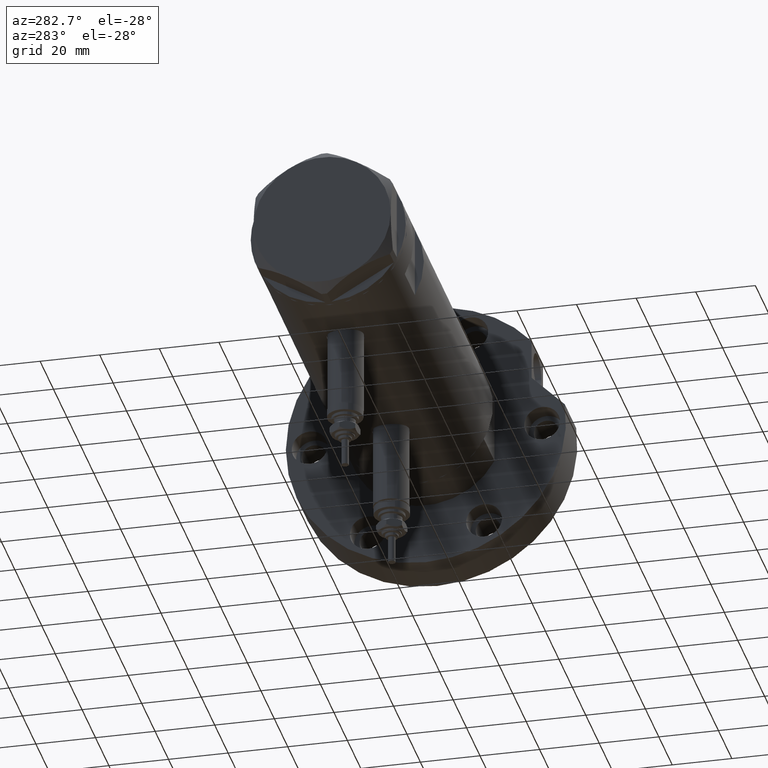
[diagram: clean part render]
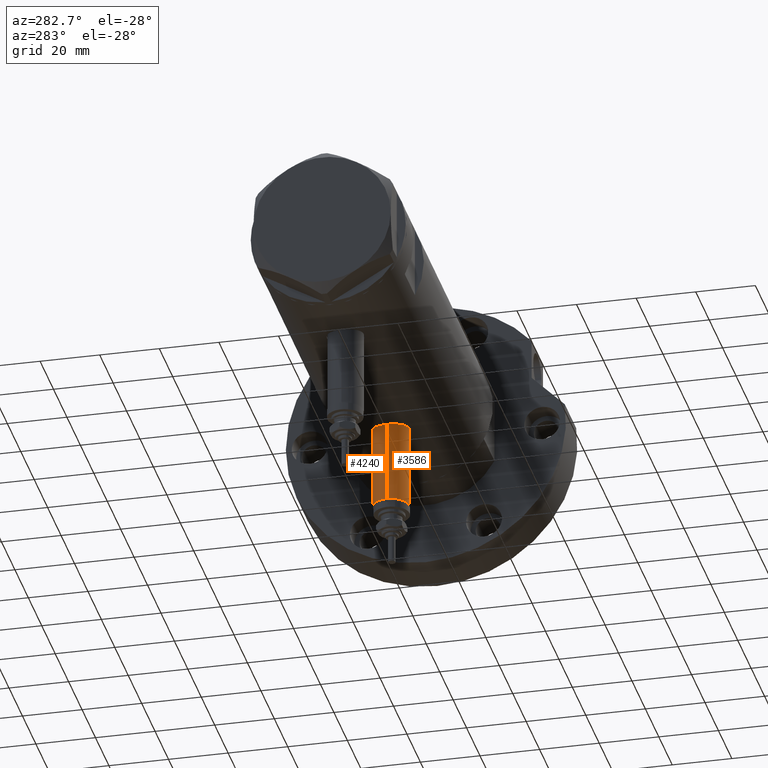
[diagram: same view with one multi-face feature highlighted, each face labeled with its STEP entity id]
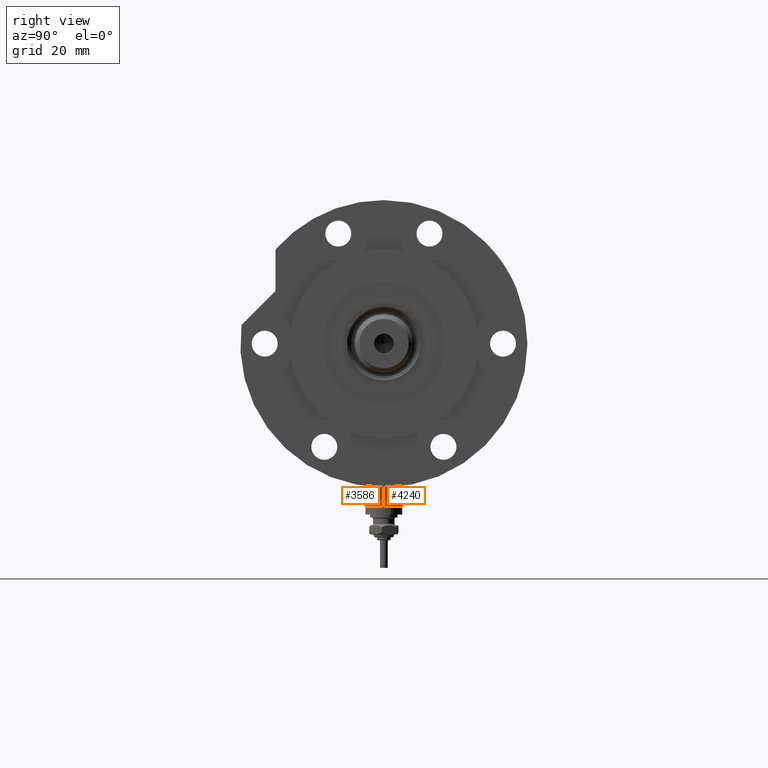
[diagram: same view with one multi-face feature highlighted, each face labeled with its STEP entity id]
A machine part, auxiliary view. The highlighted faces form ONE feature: a constant-radius fillet chain: 2 tangent blend faces with common blend radius 6 mm. The faces share edges in the B-rep.
A second angle (right view) of the same feature is appended — it is thin or edge-on in the first view.
Their STEP definitions:
[1] entity #4240 (Cylinder):
#46 = CIRCLE ( 'NONE', #5414, 6.000000000000001776 ) ;
#237 = VERTEX_POINT ( 'NONE', #7466 ) ;
#526 = CARTESIAN_POINT ( 'NONE',  ( -53.40000000000000568, 0.000000000000000000, -27.65000000000000924 ) ) ;
#578 = EDGE_LOOP ( 'NONE', ( #5950, #4549, #5734, #1494 ) ) ;
#1037 = EDGE_CURVE ( 'NONE', #1480, #1279, #1166, .T. ) ;
#1134 = DIRECTION ( 'NONE',  ( 0.000000000000000000, 0.000000000000000000, -1.000000000000000000 ) ) ;
#1136 = CARTESIAN_POINT ( 'NONE',  ( -53.40000000000000568, 7.347880794884123680E-16, -21.65000000000000213 ) ) ;
#1166 = CIRCLE ( 'NONE', #5909, 6.000000000000001776 ) ;
#1183 = VECTOR ( 'NONE', #2987, 1000.000000000000000 ) ;
#1254 = CARTESIAN_POINT ( 'NONE',  ( -24.80000000000000426, 7.347880794884123680E-16, -21.65000000000000213 ) ) ;
#1279 = VERTEX_POINT ( 'NONE', #1732 ) ;
#1480 = VERTEX_POINT ( 'NONE', #1136 ) ;
#1494 = ORIENTED_EDGE ( 'NONE', *, *, #2908, .F. ) ;
#1732 = CARTESIAN_POINT ( 'NONE',  ( -53.40000000000000568, 0.000000000000000000, -33.65000000000001279 ) ) ;
#1982 = CARTESIAN_POINT ( 'NONE',  ( -53.40000000000000568, 7.347880794884122694E-16, -21.65000000000000568 ) ) ;
#2202 = DIRECTION ( 'NONE',  ( 0.000000000000000000, 0.000000000000000000, 1.000000000000000000 ) ) ;
#2636 = VECTOR ( 'NONE', #3806, 1000.000000000000000 ) ;
#2654 = CARTESIAN_POINT ( 'NONE',  ( -24.80000000000000426, 0.000000000000000000, -27.65000000000000924 ) ) ;
#2805 = CARTESIAN_POINT ( 'NONE',  ( -53.40000000000000568, 0.000000000000000000, -33.65000000000001279 ) ) ;
#2908 = EDGE_CURVE ( 'NONE', #1279, #237, #3388, .T. ) ;
#2987 = DIRECTION ( 'NONE',  ( 1.000000000000000000, -0.000000000000000000, -0.000000000000000000 ) ) ;
#3388 = LINE ( 'NONE', #2805, #1183 ) ;
#3725 = DIRECTION ( 'NONE',  ( 0.000000000000000000, 0.000000000000000000, 1.000000000000000000 ) ) ;
#3806 = DIRECTION ( 'NONE',  ( 1.000000000000000000, -0.000000000000000000, -0.000000000000000000 ) ) ;
#3940 = EDGE_CURVE ( 'NONE', #6498, #237, #46, .T. ) ;
#4240 = ADVANCED_FACE ( 'NONE', ( #6736 ), #7323, .T. ) ;
#4549 = ORIENTED_EDGE ( 'NONE', *, *, #5246, .T. ) ;
#4672 = AXIS2_PLACEMENT_3D ( 'NONE', #526, #5511, #1134 ) ;
#5018 = LINE ( 'NONE', #1982, #2636 ) ;
#5246 = EDGE_CURVE ( 'NONE', #1480, #6498, #5018, .T. ) ;
#5414 = AXIS2_PLACEMENT_3D ( 'NONE', #2654, #7554, #3725 ) ;
#5511 = DIRECTION ( 'NONE',  ( 1.000000000000000000, -0.000000000000000000, -0.000000000000000000 ) ) ;
#5731 = CARTESIAN_POINT ( 'NONE',  ( -53.40000000000000568, 0.000000000000000000, -27.65000000000000924 ) ) ;
#5734 = ORIENTED_EDGE ( 'NONE', *, *, #3940, .T. ) ;
#5909 = AXIS2_PLACEMENT_3D ( 'NONE', #5731, #7051, #2202 ) ;
#5950 = ORIENTED_EDGE ( 'NONE', *, *, #1037, .F. ) ;
#6498 = VERTEX_POINT ( 'NONE', #1254 ) ;
#6736 = FACE_OUTER_BOUND ( 'NONE', #578, .T. ) ;
#7051 = DIRECTION ( 'NONE',  ( -1.000000000000000000, 0.000000000000000000, 0.000000000000000000 ) ) ;
#7323 = CYLINDRICAL_SURFACE ( 'NONE', #4672, 6.000000000000005329 ) ;
#7466 = CARTESIAN_POINT ( 'NONE',  ( -24.80000000000000426, 0.000000000000000000, -33.65000000000001279 ) ) ;
#7554 = DIRECTION ( 'NONE',  ( -1.000000000000000000, 0.000000000000000000, 0.000000000000000000 ) ) ;
[2] entity #3586 (Cylinder):
#62 = EDGE_CURVE ( 'NONE', #237, #6498, #5765, .T. ) ;
#237 = VERTEX_POINT ( 'NONE', #7466 ) ;
#1070 = CARTESIAN_POINT ( 'NONE',  ( -24.80000000000000426, 0.000000000000000000, -27.65000000000000924 ) ) ;
#1136 = CARTESIAN_POINT ( 'NONE',  ( -53.40000000000000568, 7.347880794884123680E-16, -21.65000000000000213 ) ) ;
#1183 = VECTOR ( 'NONE', #2987, 1000.000000000000000 ) ;
#1254 = CARTESIAN_POINT ( 'NONE',  ( -24.80000000000000426, 7.347880794884123680E-16, -21.65000000000000213 ) ) ;
#1263 = ORIENTED_EDGE ( 'NONE', *, *, #5246, .F. ) ;
#1279 = VERTEX_POINT ( 'NONE', #1732 ) ;
#1480 = VERTEX_POINT ( 'NONE', #1136 ) ;
#1551 = ORIENTED_EDGE ( 'NONE', *, *, #5564, .F. ) ;
#1675 = AXIS2_PLACEMENT_3D ( 'NONE', #1070, #6541, #2767 ) ;
#1732 = CARTESIAN_POINT ( 'NONE',  ( -53.40000000000000568, 0.000000000000000000, -33.65000000000001279 ) ) ;
#1982 = CARTESIAN_POINT ( 'NONE',  ( -53.40000000000000568, 7.347880794884122694E-16, -21.65000000000000568 ) ) ;
#2560 = FACE_OUTER_BOUND ( 'NONE', #3828, .T. ) ;
#2636 = VECTOR ( 'NONE', #3806, 1000.000000000000000 ) ;
#2767 = DIRECTION ( 'NONE',  ( 0.000000000000000000, 0.000000000000000000, 1.000000000000000000 ) ) ;
#2805 = CARTESIAN_POINT ( 'NONE',  ( -53.40000000000000568, 0.000000000000000000, -33.65000000000001279 ) ) ;
#2908 = EDGE_CURVE ( 'NONE', #1279, #237, #3388, .T. ) ;
#2987 = DIRECTION ( 'NONE',  ( 1.000000000000000000, -0.000000000000000000, -0.000000000000000000 ) ) ;
#3220 = AXIS2_PLACEMENT_3D ( 'NONE', #6823, #7460, #6163 ) ;
#3388 = LINE ( 'NONE', #2805, #1183 ) ;
#3586 = ADVANCED_FACE ( 'NONE', ( #2560 ), #7389, .T. ) ;
#3806 = DIRECTION ( 'NONE',  ( 1.000000000000000000, -0.000000000000000000, -0.000000000000000000 ) ) ;
#3828 = EDGE_LOOP ( 'NONE', ( #1263, #1551, #6933, #4341 ) ) ;
#4042 = CIRCLE ( 'NONE', #7112, 6.000000000000001776 ) ;
#4341 = ORIENTED_EDGE ( 'NONE', *, *, #62, .T. ) ;
#4803 = CARTESIAN_POINT ( 'NONE',  ( -53.40000000000000568, 0.000000000000000000, -27.65000000000000924 ) ) ;
#5018 = LINE ( 'NONE', #1982, #2636 ) ;
#5246 = EDGE_CURVE ( 'NONE', #1480, #6498, #5018, .T. ) ;
#5564 = EDGE_CURVE ( 'NONE', #1279, #1480, #4042, .T. ) ;
#5765 = CIRCLE ( 'NONE', #1675, 6.000000000000001776 ) ;
#6032 = DIRECTION ( 'NONE',  ( 0.000000000000000000, 0.000000000000000000, 1.000000000000000000 ) ) ;
#6163 = DIRECTION ( 'NONE',  ( 0.000000000000000000, 0.000000000000000000, -1.000000000000000000 ) ) ;
#6498 = VERTEX_POINT ( 'NONE', #1254 ) ;
#6541 = DIRECTION ( 'NONE',  ( -1.000000000000000000, 0.000000000000000000, 0.000000000000000000 ) ) ;
#6823 = CARTESIAN_POINT ( 'NONE',  ( -53.40000000000000568, 0.000000000000000000, -27.65000000000000924 ) ) ;
#6933 = ORIENTED_EDGE ( 'NONE', *, *, #2908, .T. ) ;
#7112 = AXIS2_PLACEMENT_3D ( 'NONE', #4803, #7807, #6032 ) ;
#7389 = CYLINDRICAL_SURFACE ( 'NONE', #3220, 6.000000000000005329 ) ;
#7460 = DIRECTION ( 'NONE',  ( 1.000000000000000000, -0.000000000000000000, -0.000000000000000000 ) ) ;
#7466 = CARTESIAN_POINT ( 'NONE',  ( -24.80000000000000426, 0.000000000000000000, -33.65000000000001279 ) ) ;
#7807 = DIRECTION ( 'NONE',  ( -1.000000000000000000, 0.000000000000000000, 0.000000000000000000 ) ) ;